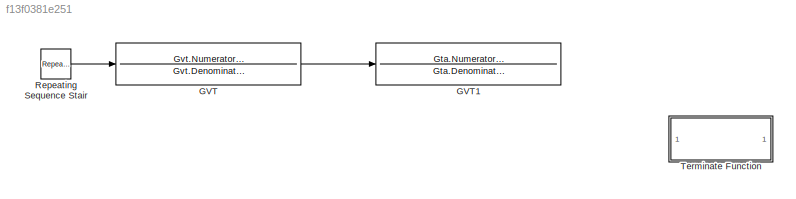
MODEL slx_f13f0381e251
KIND model
CONFIG AbsTol = auto
CONFIG EnableMultiTasking = off
CONFIG FixedStep = auto
CONFIG MaxStep = auto
CONFIG MinStep = auto
CONFIG RelTol = 1e-3
CONFIG SampleTimeConstraint = Unconstrained
CONFIG SolverName = VariableStepAuto
CONFIG StartTime = 0.0
CONFIG StopTime = 10.0
BLOCK [TransferFcn] GVT
  Denominator = Gvt.Denominator{1}
  Numerator = Gvt.Numerator{1}
BLOCK [TransferFcn] GVT1
  Denominator = Gta.Denominator{1}
  Numerator = Gta.Numerator{1}
BLOCK [Reference] Repeating Sequence Stair  REF=simulink/Sources/Repeating
Sequence
Stair
  SourceBlock = simulink/Sources/Repeating\nSequence\nStair
  SourceType = Repeating Sequence Stair
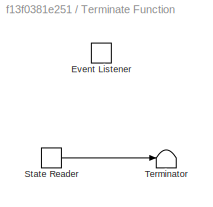
BLOCK [SubSystem] Terminate Function
  TreatAsAtomicUnit = on
BLOCK [EventListener] Terminate Function/Event Listener
  DisableCoverage = on
  EventName = reset
  EventType = Terminate
BLOCK [StateReader] Terminate Function/State Reader
BLOCK [Terminator] Terminate Function/Terminator
LINE GVT:1 -> GVT1:1
LINE Repeating Sequence Stair:1 -> GVT:1
LINE Terminate Function/State Reader:1 -> Terminate Function/Terminator:1
